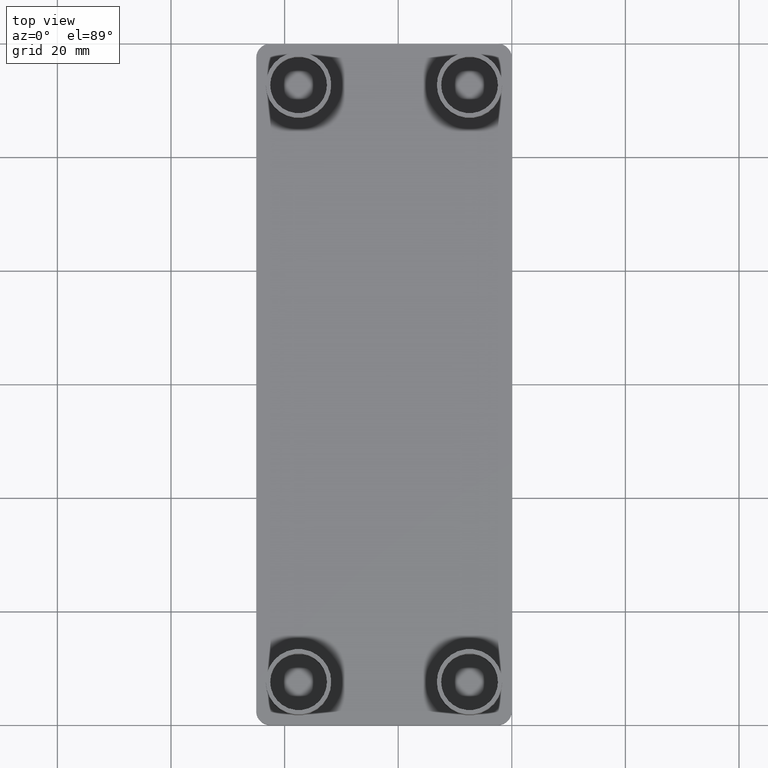
[diagram: clean part render]
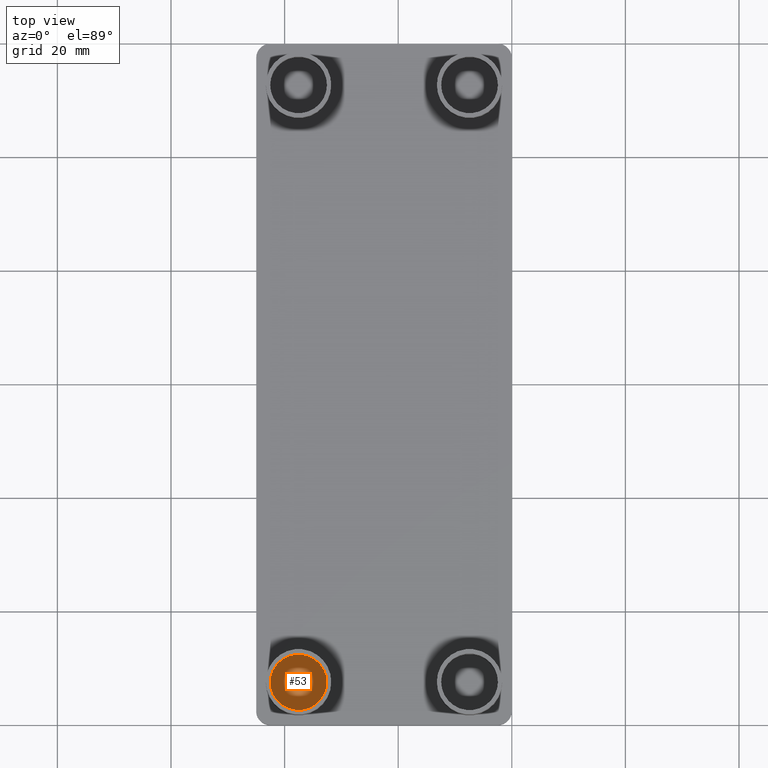
[diagram: same view with one face highlighted and labeled with its STEP entity id]
A machine part, top view. The second image highlights one B-rep face of the part: STEP entity #53.
In plain terms, the highlighted planar face has unit normal (0, 0, 1).
Its self-contained STEP definition (entity closure, byte-faithful):
#28=CARTESIAN_POINT('',(-49.499975822407123,-72.000025978629537,0.0));
#29=DIRECTION('',(0.0,0.0,1.0));
#30=DIRECTION('',(1.0,0.0,0.0));
#31=AXIS2_PLACEMENT_3D('',#28,#29,#30);
#32=PLANE('',#31);
#33=CARTESIAN_POINT('',(-42.549998999829320,-52.550044499789919,0.0));
#34=VERTEX_POINT('',#33);
#35=CARTESIAN_POINT('',(-32.549998999869331,-52.550044499789919,0.0));
#36=VERTEX_POINT('',#35);
#37=CARTESIAN_POINT('',(-37.549998999849322,-52.550044499789919,0.0));
#38=DIRECTION('',(0.0,0.0,-1.0));
#39=DIRECTION('',(1.0,0.0,0.0));
#40=AXIS2_PLACEMENT_3D('',#37,#38,#39);
#41=CIRCLE('',#40,4.999999999980001);
#42=EDGE_CURVE('',#34,#36,#41,.T.);
#43=ORIENTED_EDGE('',*,*,#42,.F.);
#44=CARTESIAN_POINT('',(-37.549998999849322,-52.550044499789919,0.0));
#45=DIRECTION('',(0.0,0.0,-1.0));
#46=DIRECTION('',(1.0,0.0,0.0));
#47=AXIS2_PLACEMENT_3D('',#44,#45,#46);
#48=CIRCLE('',#47,4.999999999980001);
#49=EDGE_CURVE('',#36,#34,#48,.T.);
#50=ORIENTED_EDGE('',*,*,#49,.F.);
#51=EDGE_LOOP('',(#43,#50));
#52=FACE_OUTER_BOUND('',#51,.T.);
#53=ADVANCED_FACE('',(#52),#32,.T.);